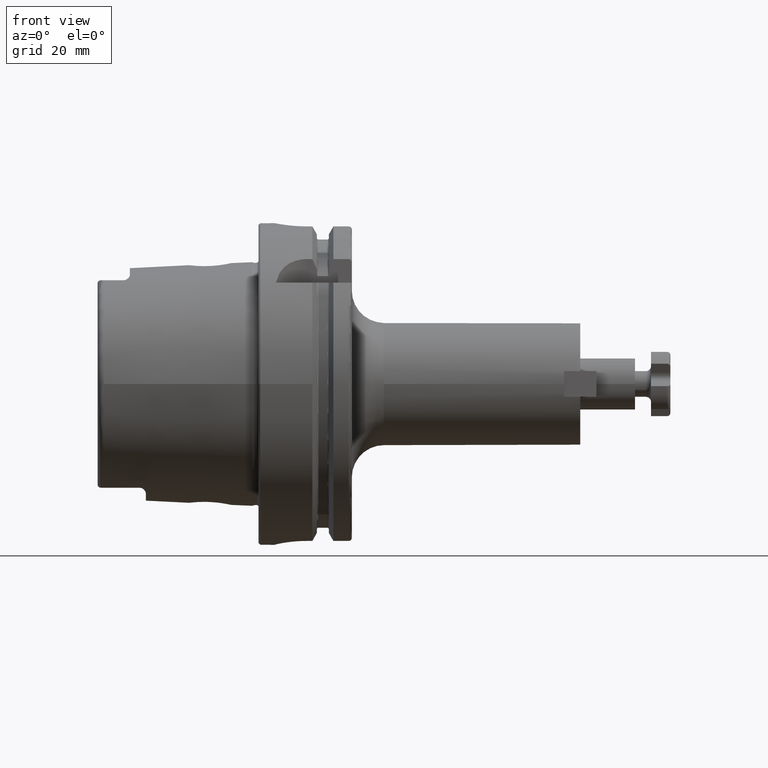
[diagram: clean part render]
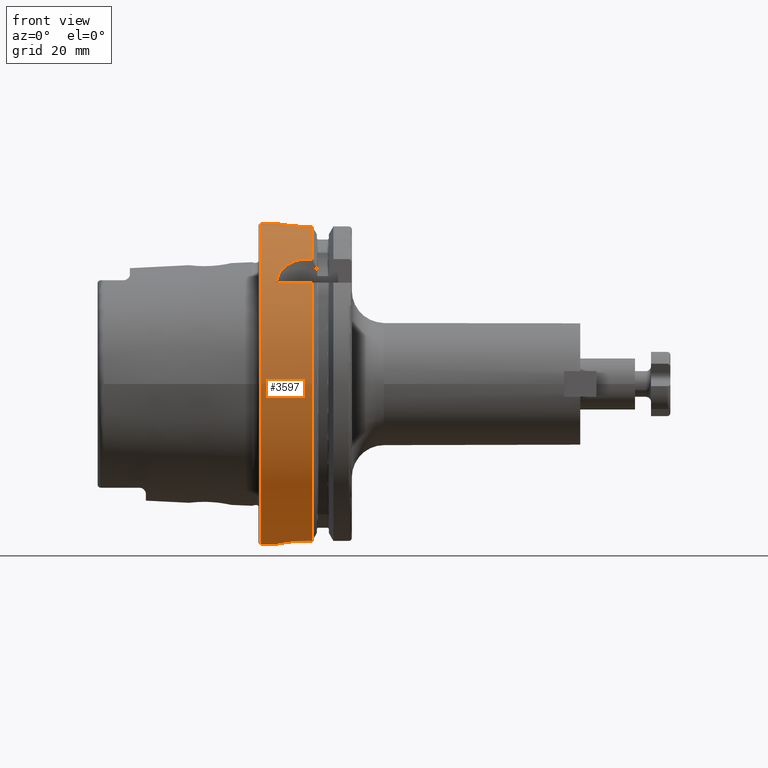
[diagram: same view with one face highlighted and labeled with its STEP entity id]
A machine part, front view. The second image highlights one B-rep face of the part: STEP entity #3597.
In plain terms, the highlighted cylindrical surface (bore or boss wall) has radius 50 mm, axis along (1, 0, 0).
Its self-contained STEP definition (entity closure, byte-faithful):
#599=B_SPLINE_CURVE_WITH_KNOTS('',3,(#6369,#6370,#6371,#6372,#6373,#6374,
#6375,#6376,#6377,#6378,#6379,#6380,#6381,#6382,#6383,#6384,#6385,#6386,
#6387,#6388,#6389,#6390,#6391,#6392,#6393,#6394),.UNSPECIFIED.,.F.,.F.,
(4,2,2,2,2,2,2,2,2,2,2,2,4),(0.,0.188478911015149,0.376957822030298,0.565436091508923,
0.753914360987547,0.942392630466172,1.1308708999448,1.31934981095995,1.50782872197509,
1.69630763299024,1.88478654400539,2.07326481348402,2.26174308296264),
 .UNSPECIFIED.);
#600=B_SPLINE_CURVE_WITH_KNOTS('',3,(#6395,#6396,#6397,#6398,#6399,#6400,
#6401,#6402,#6403,#6404),.UNSPECIFIED.,.F.,.F.,(4,2,2,2,4),(2.26174308296264,
2.45022135244127,2.63869962191989,2.82717853293504,3.01565744395019),
 .UNSPECIFIED.);
#601=B_SPLINE_CURVE_WITH_KNOTS('',3,(#6408,#6409,#6410,#6411,#6412,#6413,
#6414,#6415,#6416,#6417,#6418,#6419),.UNSPECIFIED.,.F.,.F.,(4,2,2,2,2,4),
(1.13213255574021,1.59216410027009,1.87572541272146,2.15928672517283,2.38471683342296,
2.61014694167308),.UNSPECIFIED.);
#608=B_SPLINE_CURVE_WITH_KNOTS('',3,(#6532,#6533,#6534,#6535,#6536,#6537,
#6538,#6539,#6540,#6541,#6542,#6543,#6544,#6545,#6546,#6547,#6548,#6549),
 .UNSPECIFIED.,.F.,.F.,(4,2,2,2,2,2,2,2,4),(0.,0.377795255890194,0.755590511780389,
1.13336459804459,1.51113868430879,1.88891277057299,2.26668685683718,2.64448211272738,
3.02227736861757),.UNSPECIFIED.);
#609=B_SPLINE_CURVE_WITH_KNOTS('',3,(#6557,#6558,#6559,#6560,#6561,#6562,
#6563,#6564,#6565,#6566),.UNSPECIFIED.,.F.,.F.,(4,2,2,2,4),(0.,0.377863193874929,
0.755726387749858,1.13417752669663,1.51262866564341),.UNSPECIFIED.);
#610=B_SPLINE_CURVE_WITH_KNOTS('',3,(#6570,#6571,#6572,#6573,#6574,#6575,
#6576,#6577,#6578,#6579),.UNSPECIFIED.,.F.,.F.,(4,2,2,2,4),(1.50996806152532,
1.8884192004721,2.26687033941887,2.6447335332938,3.02259672716873),
 .UNSPECIFIED.);
#687=FACE_BOUND('',#1072,.T.);
#788=CYLINDRICAL_SURFACE('',#4011,50.);
#878=FACE_OUTER_BOUND('',#1071,.T.);
#1071=EDGE_LOOP('',(#2889,#2890,#2891,#2892,#2893,#2894,#2895,#2896,#2897,
#2898,#2899,#2900,#2901,#2902,#2903,#2904,#2905,#2906));
#1072=EDGE_LOOP('',(#2907,#2908));
#1275=LINE('',#6425,#1465);
#1281=LINE('',#6477,#1471);
#1286=LINE('',#6530,#1476);
#1287=LINE('',#6551,#1477);
#1288=LINE('',#6555,#1478);
#1289=LINE('',#6581,#1479);
#1290=LINE('',#6585,#1480);
#1465=VECTOR('',#4665,10.);
#1471=VECTOR('',#4673,10.);
#1476=VECTOR('',#4682,10.);
#1477=VECTOR('',#4683,10.);
#1478=VECTOR('',#4686,10.);
#1479=VECTOR('',#4689,10.);
#1480=VECTOR('',#4692,50.);
#1654=CIRCLE('',#4012,50.);
#1655=CIRCLE('',#4013,50.);
#1656=CIRCLE('',#4014,50.);
#1657=CIRCLE('',#4015,50.);
#1658=CIRCLE('',#4016,50.);
#1659=CIRCLE('',#4017,50.);
#1933=VERTEX_POINT('',#6366);
#1934=VERTEX_POINT('',#6368);
#1935=VERTEX_POINT('',#6406);
#1936=VERTEX_POINT('',#6407);
#1938=VERTEX_POINT('',#6424);
#1947=VERTEX_POINT('',#6476);
#1956=VERTEX_POINT('',#6527);
#1957=VERTEX_POINT('',#6529);
#1958=VERTEX_POINT('',#6531);
#1959=VERTEX_POINT('',#6550);
#1960=VERTEX_POINT('',#6552);
#1961=VERTEX_POINT('',#6554);
#1962=VERTEX_POINT('',#6556);
#1963=VERTEX_POINT('',#6567);
#1964=VERTEX_POINT('',#6569);
#1965=VERTEX_POINT('',#6580);
#1966=VERTEX_POINT('',#6582);
#1967=VERTEX_POINT('',#6584);
#2284=EDGE_CURVE('',#1934,#1933,#599,.T.);
#2285=EDGE_CURVE('',#1933,#1934,#600,.T.);
#2286=EDGE_CURVE('',#1935,#1936,#601,.T.);
#2289=EDGE_CURVE('',#1936,#1938,#1275,.T.);
#2300=EDGE_CURVE('',#1947,#1935,#1281,.T.);
#2310=EDGE_CURVE('',#1956,#1938,#1654,.T.);
#2311=EDGE_CURVE('',#1956,#1957,#1286,.T.);
#2312=EDGE_CURVE('',#1957,#1958,#608,.T.);
#2313=EDGE_CURVE('',#1958,#1959,#1287,.T.);
#2314=EDGE_CURVE('',#1960,#1959,#1655,.T.);
#2315=EDGE_CURVE('',#1960,#1961,#1288,.T.);
#2316=EDGE_CURVE('',#1961,#1962,#609,.T.);
#2317=EDGE_CURVE('',#1962,#1963,#1656,.T.);
#2318=EDGE_CURVE('',#1963,#1964,#610,.T.);
#2319=EDGE_CURVE('',#1964,#1965,#1289,.T.);
#2320=EDGE_CURVE('',#1966,#1965,#1657,.T.);
#2321=EDGE_CURVE('',#1966,#1967,#1290,.T.);
#2322=EDGE_CURVE('',#1967,#1967,#1658,.T.);
#2323=EDGE_CURVE('',#1947,#1966,#1659,.T.);
#2889=ORIENTED_EDGE('',*,*,#2300,.T.);
#2890=ORIENTED_EDGE('',*,*,#2286,.T.);
#2891=ORIENTED_EDGE('',*,*,#2289,.T.);
#2892=ORIENTED_EDGE('',*,*,#2310,.F.);
#2893=ORIENTED_EDGE('',*,*,#2311,.T.);
#2894=ORIENTED_EDGE('',*,*,#2312,.T.);
#2895=ORIENTED_EDGE('',*,*,#2313,.T.);
#2896=ORIENTED_EDGE('',*,*,#2314,.F.);
#2897=ORIENTED_EDGE('',*,*,#2315,.T.);
#2898=ORIENTED_EDGE('',*,*,#2316,.T.);
#2899=ORIENTED_EDGE('',*,*,#2317,.T.);
#2900=ORIENTED_EDGE('',*,*,#2318,.T.);
#2901=ORIENTED_EDGE('',*,*,#2319,.T.);
#2902=ORIENTED_EDGE('',*,*,#2320,.F.);
#2903=ORIENTED_EDGE('',*,*,#2321,.T.);
#2904=ORIENTED_EDGE('',*,*,#2322,.T.);
#2905=ORIENTED_EDGE('',*,*,#2321,.F.);
#2906=ORIENTED_EDGE('',*,*,#2323,.F.);
#2907=ORIENTED_EDGE('',*,*,#2284,.T.);
#2908=ORIENTED_EDGE('',*,*,#2285,.T.);
#3597=ADVANCED_FACE('',(#878,#687),#788,.T.);
#4011=AXIS2_PLACEMENT_3D('',#6526,#4678,#4679);
#4012=AXIS2_PLACEMENT_3D('',#6528,#4680,#4681);
#4013=AXIS2_PLACEMENT_3D('',#6553,#4684,#4685);
#4014=AXIS2_PLACEMENT_3D('',#6568,#4687,#4688);
#4015=AXIS2_PLACEMENT_3D('',#6583,#4690,#4691);
#4016=AXIS2_PLACEMENT_3D('',#6586,#4693,#4694);
#4017=AXIS2_PLACEMENT_3D('',#6587,#4695,#4696);
#4665=DIRECTION('',(1.,0.,0.));
#4673=DIRECTION('',(-1.,0.,0.));
#4678=DIRECTION('center_axis',(1.,0.,0.));
#4679=DIRECTION('ref_axis',(0.,1.,0.));
#4680=DIRECTION('center_axis',(1.,0.,0.));
#4681=DIRECTION('ref_axis',(0.,0.,-1.));
#4682=DIRECTION('',(-1.,0.,0.));
#4683=DIRECTION('',(1.,0.,0.));
#4684=DIRECTION('center_axis',(1.,0.,0.));
#4685=DIRECTION('ref_axis',(0.,0.,-1.));
#4686=DIRECTION('',(-1.,0.,0.));
#4687=DIRECTION('center_axis',(-1.,0.,0.));
#4688=DIRECTION('ref_axis',(0.,1.,0.));
#4689=DIRECTION('',(1.,0.,0.));
#4690=DIRECTION('center_axis',(1.,0.,0.));
#4691=DIRECTION('ref_axis',(0.,0.,-1.));
#4692=DIRECTION('',(-1.,0.,0.));
#4693=DIRECTION('center_axis',(1.,0.,0.));
#4694=DIRECTION('ref_axis',(0.,0.,-1.));
#4695=DIRECTION('center_axis',(1.,0.,0.));
#4696=DIRECTION('ref_axis',(0.,0.,-1.));
#6366=CARTESIAN_POINT('',(12.,50.,-6.12323399573677E-16));
#6368=CARTESIAN_POINT('',(6.99999999999999,49.749371855331,5.));
#6369=CARTESIAN_POINT('Ctrl Pts',(6.99999999999999,49.749371855331,5.));
#6370=CARTESIAN_POINT('Ctrl Pts',(6.37173696328283,49.749371855331,5.));
#6371=CARTESIAN_POINT('Ctrl Pts',(5.70188570880885,49.7624993987098,4.87435544587055));
#6372=CARTESIAN_POINT('Ctrl Pts',(4.4701142477173,49.8098541153698,4.36395693611591));
#6373=CARTESIAN_POINT('Ctrl Pts',(3.90815809537484,49.8433908660961,3.97922590724033));
#6374=CARTESIAN_POINT('Ctrl Pts',(3.02077560297968,49.9062957431473,3.09184341484517));
#6375=CARTESIAN_POINT('Ctrl Pts',(2.63604339567929,49.9397591808605,2.52988660036719));
#6376=CARTESIAN_POINT('Ctrl Pts',(2.12564400622109,49.9869460568296,1.29811292154946));
#6377=CARTESIAN_POINT('Ctrl Pts',(1.99999999999999,50.,0.628260898262081));
#6378=CARTESIAN_POINT('Ctrl Pts',(1.99999999999999,50.,-0.628260898262082));
#6379=CARTESIAN_POINT('Ctrl Pts',(2.12564400622109,49.9869460568296,-1.29811292154946));
#6380=CARTESIAN_POINT('Ctrl Pts',(2.63604339567929,49.9397591808605,-2.52988660036719));
#6381=CARTESIAN_POINT('Ctrl Pts',(3.02077560297968,49.9062957431473,-3.09184341484517));
#6382=CARTESIAN_POINT('Ctrl Pts',(3.90815809537484,49.8433908660961,-3.97922590724033));
#6383=CARTESIAN_POINT('Ctrl Pts',(4.4701142477173,49.8098541153698,-4.36395693611591));
#6384=CARTESIAN_POINT('Ctrl Pts',(5.70188570880885,49.7624993987098,-4.87435544587055));
#6385=CARTESIAN_POINT('Ctrl Pts',(6.37173696328283,49.749371855331,-5.));
#6386=CARTESIAN_POINT('Ctrl Pts',(7.62826303671716,49.749371855331,-5.));
#6387=CARTESIAN_POINT('Ctrl Pts',(8.29811429119113,49.7624993987098,-4.87435544587055));
#6388=CARTESIAN_POINT('Ctrl Pts',(9.52988575228269,49.8098541153698,-4.36395693611591));
#6389=CARTESIAN_POINT('Ctrl Pts',(10.0918419046251,49.8433908660961,-3.97922590724033));
#6390=CARTESIAN_POINT('Ctrl Pts',(10.9792243970203,49.9062957431473,-3.09184341484517));
#6391=CARTESIAN_POINT('Ctrl Pts',(11.3639566043207,49.9397591808605,-2.52988660036719));
#6392=CARTESIAN_POINT('Ctrl Pts',(11.8743559937789,49.9869460568296,-1.29811292154947));
#6393=CARTESIAN_POINT('Ctrl Pts',(12.,50.,-0.628260898262083));
#6394=CARTESIAN_POINT('Ctrl Pts',(12.,50.,-5.55111512312578E-16));
#6395=CARTESIAN_POINT('Ctrl Pts',(12.,50.,-5.55111512312578E-16));
#6396=CARTESIAN_POINT('Ctrl Pts',(12.,50.,0.628260898262082));
#6397=CARTESIAN_POINT('Ctrl Pts',(11.8743559937789,49.9869460568296,1.29811292154946));
#6398=CARTESIAN_POINT('Ctrl Pts',(11.3639566043207,49.9397591808605,2.52988660036719));
#6399=CARTESIAN_POINT('Ctrl Pts',(10.9792243970203,49.9062957431473,3.09184341484517));
#6400=CARTESIAN_POINT('Ctrl Pts',(10.0918419046251,49.8433908660961,3.97922590724033));
#6401=CARTESIAN_POINT('Ctrl Pts',(9.52988575228269,49.8098541153698,4.36395693611591));
#6402=CARTESIAN_POINT('Ctrl Pts',(8.29811429119113,49.7624993987098,4.87435544587055));
#6403=CARTESIAN_POINT('Ctrl Pts',(7.62826303671716,49.749371855331,5.));
#6404=CARTESIAN_POINT('Ctrl Pts',(6.99999999999999,49.749371855331,5.));
#6406=CARTESIAN_POINT('',(5.36310214079494,-38.8297566307078,31.5));
#6407=CARTESIAN_POINT('',(15.,-31.5,38.8297566307078));
#6408=CARTESIAN_POINT('Ctrl Pts',(5.36310214079494,-38.8297566307078,31.5));
#6409=CARTESIAN_POINT('Ctrl Pts',(5.63795050776221,-37.8378299510303,32.722738779917));
#6410=CARTESIAN_POINT('Ctrl Pts',(6.08245260240086,-36.8264130955983,33.8486741193789));
#6411=CARTESIAN_POINT('Ctrl Pts',(7.14730321206235,-35.2667182945212,35.4540138707062));
#6412=CARTESIAN_POINT('Ctrl Pts',(7.68113760815893,-34.6306580359392,36.0741351437033));
#6413=CARTESIAN_POINT('Ctrl Pts',(8.97436758466638,-33.4722127660808,37.1515365058173));
#6414=CARTESIAN_POINT('Ctrl Pts',(9.73574998094174,-32.9521170857844,37.6088911783762));
#6415=CARTESIAN_POINT('Ctrl Pts',(11.1521999725134,-32.2432973482077,38.2170233500259));
#6416=CARTESIAN_POINT('Ctrl Pts',(11.8888981504148,-31.9629772872452,38.4503075998006));
#6417=CARTESIAN_POINT('Ctrl Pts',(13.4369856471743,-31.5908755949743,38.7566077888176));
#6418=CARTESIAN_POINT('Ctrl Pts',(14.2485663058329,-31.5,38.8297566307078));
#6419=CARTESIAN_POINT('Ctrl Pts',(15.,-31.5,38.8297566307078));
#6424=CARTESIAN_POINT('',(16.7379709790786,-31.5,38.8297566307078));
#6425=CARTESIAN_POINT('',(8.61898548953931,-31.5,38.8297566307078));
#6476=CARTESIAN_POINT('',(16.7379709790786,-38.8297566307078,31.5));
#6477=CARTESIAN_POINT('',(8.61898548953931,-38.8297566307078,31.5));
#6526=CARTESIAN_POINT('Origin',(8.61898548953931,0.,0.));
#6527=CARTESIAN_POINT('',(16.7379709790786,-10.,48.9897948556636));
#6528=CARTESIAN_POINT('Origin',(16.7379709790786,0.,0.));
#6529=CARTESIAN_POINT('',(15.,-10.,48.9897948556636));
#6530=CARTESIAN_POINT('',(8.61898548953931,-10.,48.9897948556636));
#6531=CARTESIAN_POINT('',(15.,10.,48.9897948556636));
#6532=CARTESIAN_POINT('Ctrl Pts',(15.,-10.,48.9897948556636));
#6533=CARTESIAN_POINT('Ctrl Pts',(13.740682480366,-10.,48.9897948556636));
#6534=CARTESIAN_POINT('Ctrl Pts',(12.3998222283811,-9.74762796248614,49.0433876618447));
#6535=CARTESIAN_POINT('Ctrl Pts',(9.93707994969945,-8.72605417648382,49.2354150792771));
#6536=CARTESIAN_POINT('Ctrl Pts',(8.81489539818993,-7.95703102192089,49.3709085101933));
#6537=CARTESIAN_POINT('Ctrl Pts',(7.04301862271998,-6.18515424645094,49.6240337638318));
#6538=CARTESIAN_POINT('Ctrl Pts',(6.27395658455242,-5.06294861197626,49.7583347151863));
#6539=CARTESIAN_POINT('Ctrl Pts',(5.25235457764165,-2.60013306081865,49.9476188647081));
#6540=CARTESIAN_POINT('Ctrl Pts',(4.99999999999999,-1.259246954214,50.));
#6541=CARTESIAN_POINT('Ctrl Pts',(4.99999999999999,1.259246954214,50.));
#6542=CARTESIAN_POINT('Ctrl Pts',(5.25235457764165,2.60013306081865,49.9476188647081));
#6543=CARTESIAN_POINT('Ctrl Pts',(6.27395658455242,5.06294861197626,49.7583347151863));
#6544=CARTESIAN_POINT('Ctrl Pts',(7.04301862271998,6.18515424645094,49.6240337638318));
#6545=CARTESIAN_POINT('Ctrl Pts',(8.81489539818993,7.95703102192089,49.3709085101933));
#6546=CARTESIAN_POINT('Ctrl Pts',(9.93707994969945,8.72605417648382,49.2354150792771));
#6547=CARTESIAN_POINT('Ctrl Pts',(12.3998222283811,9.74762796248614,49.0433876618447));
#6548=CARTESIAN_POINT('Ctrl Pts',(13.740682480366,10.,48.9897948556636));
#6549=CARTESIAN_POINT('Ctrl Pts',(15.,10.,48.9897948556636));
#6550=CARTESIAN_POINT('',(16.7379709790786,10.,48.9897948556636));
#6551=CARTESIAN_POINT('',(8.61898548953931,10.,48.9897948556636));
#6552=CARTESIAN_POINT('',(16.7379709790786,11.,-48.7749935930288));
#6553=CARTESIAN_POINT('Origin',(16.7379709790786,0.,0.));
#6554=CARTESIAN_POINT('',(15.,11.,-48.7749935930288));
#6555=CARTESIAN_POINT('',(8.61898548953931,11.,-48.7749935930288));
#6556=CARTESIAN_POINT('',(4.99999999999999,0.999999999999997,-49.9899989998));
#6557=CARTESIAN_POINT('Ctrl Pts',(15.,11.,-48.7749935930288));
#6558=CARTESIAN_POINT('Ctrl Pts',(13.7404560204169,11.,-48.7749935930288));
#6559=CARTESIAN_POINT('Ctrl Pts',(12.3998213084084,10.7475295248871,-48.8340306344483));
#6560=CARTESIAN_POINT('Ctrl Pts',(9.9383361278342,9.72667325975831,-49.0475663096823));
#6561=CARTESIAN_POINT('Ctrl Pts',(8.81713821454868,8.95850056252305,-49.1990678796225));
#6562=CARTESIAN_POINT('Ctrl Pts',(7.04551978193545,7.18842719108522,-49.4887060645896));
#6563=CARTESIAN_POINT('Ctrl Pts',(6.27594389465425,6.06650925178,-49.6460359942126));
#6564=CARTESIAN_POINT('Ctrl Pts',(5.25307325920197,3.60309260864685,-49.8853600567865));
#6565=CARTESIAN_POINT('Ctrl Pts',(4.99999999999999,2.26125147049483,-49.9647689238702));
#6566=CARTESIAN_POINT('Ctrl Pts',(4.99999999999999,1.,-49.9899989998));
#6567=CARTESIAN_POINT('',(4.99999999999999,-1.00000000000001,-49.9899989998));
#6568=CARTESIAN_POINT('Origin',(4.99999999999999,0.,0.));
#6569=CARTESIAN_POINT('',(15.,-11.,-48.7749935930288));
#6570=CARTESIAN_POINT('Ctrl Pts',(4.99999999999999,-1.,-49.9899989998));
#6571=CARTESIAN_POINT('Ctrl Pts',(4.99999999999999,-2.26125147049483,-49.9647689238702));
#6572=CARTESIAN_POINT('Ctrl Pts',(5.25307325920197,-3.60309260864686,-49.8853600567865));
#6573=CARTESIAN_POINT('Ctrl Pts',(6.27594389465425,-6.06650925178001,-49.6460359942126));
#6574=CARTESIAN_POINT('Ctrl Pts',(7.04551978193545,-7.18842719108522,-49.4887060645896));
#6575=CARTESIAN_POINT('Ctrl Pts',(8.81713821454868,-8.95850056252306,-49.1990678796225));
#6576=CARTESIAN_POINT('Ctrl Pts',(9.9383361278342,-9.72667325975831,-49.0475663096823));
#6577=CARTESIAN_POINT('Ctrl Pts',(12.3998213084084,-10.7475295248871,-48.8340306344483));
#6578=CARTESIAN_POINT('Ctrl Pts',(13.7404560204169,-11.,-48.7749935930288));
#6579=CARTESIAN_POINT('Ctrl Pts',(15.,-11.,-48.7749935930288));
#6580=CARTESIAN_POINT('',(16.7379709790786,-11.,-48.7749935930288));
#6581=CARTESIAN_POINT('',(8.61898548953931,-11.,-48.7749935930288));
#6582=CARTESIAN_POINT('',(16.7379709790786,-50.,-6.12323399573677E-15));
#6583=CARTESIAN_POINT('Origin',(16.7379709790786,0.,0.));
#6584=CARTESIAN_POINT('',(0.5,-50.,-6.12323399573677E-15));
#6585=CARTESIAN_POINT('',(8.61898548953931,-50.,-6.12323399573677E-15));
#6586=CARTESIAN_POINT('Origin',(0.5,0.,0.));
#6587=CARTESIAN_POINT('Origin',(16.7379709790786,0.,0.));